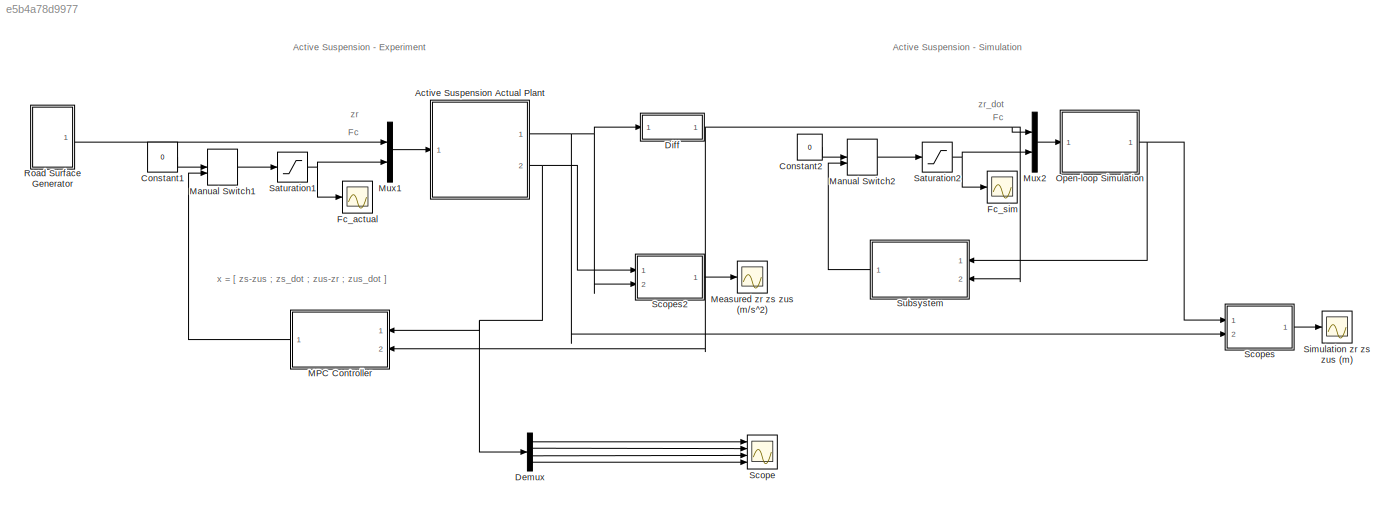
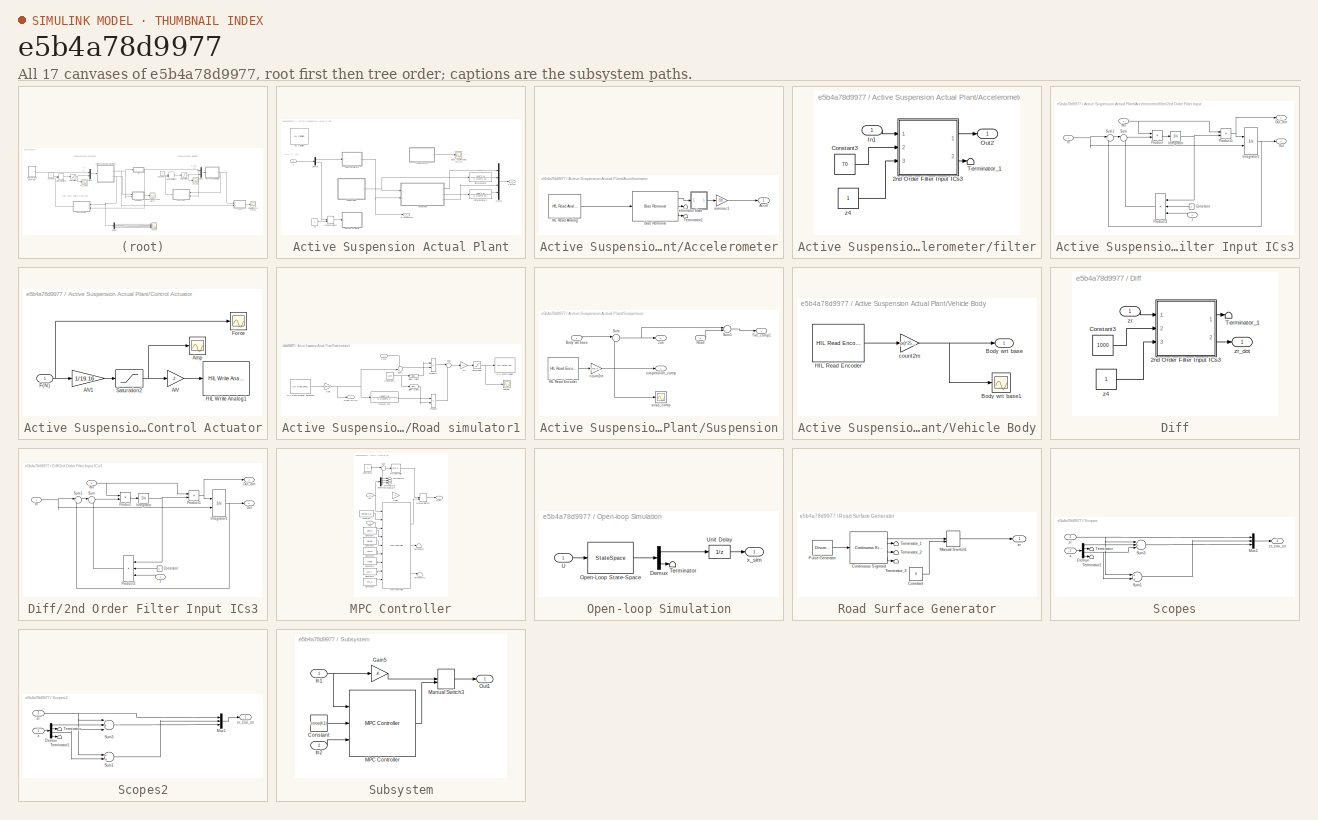
[diagram: thumbnail index - all 17 canvases of the model, root first then tree order]
MODEL slx_e5b4a78d9977
KIND model
CONFIG AbsTol = auto
CONFIG EnableMultiTasking = on
CONFIG FixedStep = 0.001
CONFIG MaxStep = auto
CONFIG MinStep = auto
CONFIG RelTol = 1e-3
CONFIG SampleTimeConstraint = Unconstrained
CONFIG Solver = ode1
CONFIG SolverName = ode1
CONFIG StartTime = 0.0
CONFIG StopTime = inf
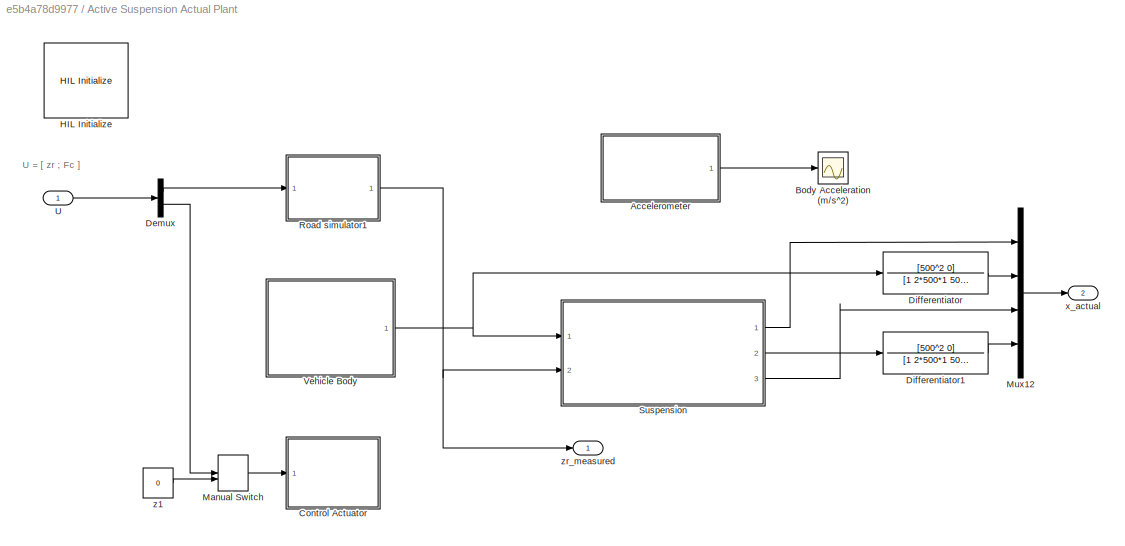
BLOCK [SubSystem] Active Suspension Actual Plant
  Ports = [1, 2]
  RequestExecContextInheritance = off
BLOCK [SubSystem] Active Suspension Actual Plant/Accelerometer
  Ports = [0, 1]
  RequestExecContextInheritance = off
BLOCK [Outport] Active Suspension Actual Plant/Accelerometer/Accel
  IconDisplay = Port number
BLOCK [Reference] Active Suspension Actual Plant/Accelerometer/Bias Removal  REF=quarc_library/Discrete/Bias Removal
  Ports = [1, 3]
  SourceBlock = quarc_library/Discrete/Bias Removal
  SourceProductName = QUARC Targets
  SourceType = Bias Removal
BLOCK [Reference] Active Suspension Actual Plant/Accelerometer/HIL Read Analog  REF=quarc_library/Data Acquisition/Generic/Immediate I//O/HIL Read Analog
  AttributesFormatString = (%<object_name>)
  Ports = [0, 1]
  SourceBlock = quarc_library/Data Acquisition/Generic/Immediate I//O/HIL Read Analog
  SourceProductName = QUARC Targets
  SourceType = HIL Read Analog
  UserDataPersistent = on
BLOCK [Terminator] Active Suspension Actual Plant/Accelerometer/Terminator
BLOCK [Terminator] Active Suspension Actual Plant/Accelerometer/Terminator1
BLOCK [SubSystem] Active Suspension Actual Plant/Accelerometer/filter
  Ports = [1, 1]
  RequestExecContextInheritance = off
BLOCK [SubSystem] Active Suspension Actual Plant/Accelerometer/filter/2nd Order Filter Input ICs3
  Ports = [3, 2]
  RequestExecContextInheritance = off
BLOCK [Constant] Active Suspension Actual Plant/Accelerometer/filter/2nd Order Filter Input ICs3/Constant
  Value = 2
BLOCK [Inport] Active Suspension Actual Plant/Accelerometer/filter/2nd Order Filter Input ICs3/In
  IconDisplay = Port number
BLOCK [Integrator] Active Suspension Actual Plant/Accelerometer/filter/2nd Order Filter Input ICs3/Integrator
  Ports = [1, 1]
BLOCK [Integrator] Active Suspension Actual Plant/Accelerometer/filter/2nd Order Filter Input ICs3/Integrator1
  InitialConditionSource = external
  Ports = [2, 1]
BLOCK [Outport] Active Suspension Actual Plant/Accelerometer/filter/2nd Order Filter Input ICs3/Out
  IconDisplay = Port number
BLOCK [Outport] Active Suspension Actual Plant/Accelerometer/filter/2nd Order Filter Input ICs3/Out_dot
  IconDisplay = Port number
  Port = 2
BLOCK [Product] Active Suspension Actual Plant/Accelerometer/filter/2nd Order Filter Input ICs3/Product
  InputSameDT = off
  OutDataTypeStr = Inherit: Inherit via internal rule
  Ports = [2, 1]
  SaturateOnIntegerOverflow = off
BLOCK [Product] Active Suspension Actual Plant/Accelerometer/filter/2nd Order Filter Input ICs3/Product1
  InputSameDT = off
  OutDataTypeStr = Inherit: Inherit via internal rule
  Ports = [2, 1]
  SaturateOnIntegerOverflow = off
BLOCK [Product] Active Suspension Actual Plant/Accelerometer/filter/2nd Order Filter Input ICs3/Product2
  InputSameDT = off
  Inputs = 3
  OutDataTypeStr = Inherit: Inherit via internal rule
  Ports = [3, 1]
  SaturateOnIntegerOverflow = off
BLOCK [Sum] Active Suspension Actual Plant/Accelerometer/filter/2nd Order Filter Input ICs3/Sum
  IconShape = round
  InputSameDT = off
  Inputs = |+-
  OutDataTypeStr = Inherit: Inherit via internal rule
  Ports = [2, 1]
  SaturateOnIntegerOverflow = off
BLOCK [Sum] Active Suspension Actual Plant/Accelerometer/filter/2nd Order Filter Input ICs3/Sum1
  IconShape = round
  InputSameDT = off
  Inputs = |+-
  OutDataTypeStr = Inherit: Inherit via internal rule
  Ports = [2, 1]
  SaturateOnIntegerOverflow = off
BLOCK [Inport] Active Suspension Actual Plant/Accelerometer/filter/2nd Order Filter Input ICs3/Wn
  IconDisplay = Port number
  Port = 2
BLOCK [Inport] Active Suspension Actual Plant/Accelerometer/filter/2nd Order Filter Input ICs3/z
  IconDisplay = Port number
  Port = 3
BLOCK [Constant] Active Suspension Actual Plant/Accelerometer/filter/Constant3
  Value = 70
BLOCK [Inport] Active Suspension Actual Plant/Accelerometer/filter/In1
  IconDisplay = Port number
BLOCK [Outport] Active Suspension Actual Plant/Accelerometer/filter/Out2
  IconDisplay = Port number
BLOCK [Terminator] Active Suspension Actual Plant/Accelerometer/filter/Terminator_1
BLOCK [Constant] Active Suspension Actual Plant/Accelerometer/filter/z4
BLOCK [Gain] Active Suspension Actual Plant/Accelerometer/mm//sec1
  Gain = -9.8
  OutDataTypeStr = Inherit: Inherit via internal rule
  ParamDataTypeStr = Inherit: Inherit via internal rule
  SaturateOnIntegerOverflow = off
BLOCK [Scope] Active Suspension Actual Plant/Body Acceleration (m//s^2)
  Floating = off
  NumInputPorts = 1
  Ports = [1]
  ScopeSpecificationString = C++SS(StrPVP('Location','[1064, 639, 1557, 1008]'),StrPVP('Open','off'),MxPVP('AxesTitles',53,'struct(''axes1'',''%<SignalLabel>'')'),MxPVP('ScopeGraphics',56,'struct(''FigureColor'',''[0.5 0.5 0.5]'',''AxesColor'',''[0 0 0]'',''AxesTickColor'',''[1 1 1]'',''LineColors'',''[1 1 0;1 0 1;0 1 1;1 0 0;0 1 0;0 0 1]'',''LineStyles'',''-|-|-|-|-|-'',''LineWidths'',''[0.5 0.5 0.5 0.5 0.5 0.5]'',''MarkerSt...<+266ch>
BLOCK [SubSystem] Active Suspension Actual Plant/Control Actuator
  Ports = [1]
  RequestExecContextInheritance = off
BLOCK [Gain] Active Suspension Actual Plant/Control Actuator/A//V
  Gain = -2
  OutDataTypeStr = Inherit: Inherit via internal rule
  ParamDataTypeStr = Inherit: Inherit via internal rule
  SaturateOnIntegerOverflow = off
BLOCK [Gain] Active Suspension Actual Plant/Control Actuator/A//V1
  Gain = 1/19.16
  OutDataTypeStr = Inherit: Inherit via internal rule
  ParamDataTypeStr = Inherit: Inherit via internal rule
  SaturateOnIntegerOverflow = off
BLOCK [Scope] Active Suspension Actual Plant/Control Actuator/Amp
  Floating = off
  NumInputPorts = 1
  Ports = [1]
  ScopeSpecificationString = C++SS(StrPVP('Location','[281, 315, 1275, 510]'),StrPVP('Open','off'),StrPVP('ZoomMode','xonly'),MxPVP('AxesTitles',53,'struct(''axes1'',''%<SignalLabel>'')'),StrPVP('TimeRange','5'),StrPVP('YMin','-1'),StrPVP('YMax','1.25'),StrPVP('SaveName','ScopeData9'),StrPVP('DataFormat','StructureWithTime'),StrPVP('LimitDataPoints','off'),StrPVP('BlockParamSampleTime','0'),StrPVP('Decimation','1'),StrPVP('Bl...<+28ch>
BLOCK [Inport] Active Suspension Actual Plant/Control Actuator/F(N)
  IconDisplay = Port number
BLOCK [Scope] Active Suspension Actual Plant/Control Actuator/Force
  Floating = off
  NumInputPorts = 1
  Ports = [1]
  ScopeSpecificationString = C++SS(StrPVP('Location','[1897, 581, 2891, 776]'),StrPVP('Open','off'),StrPVP('ZoomMode','xonly'),MxPVP('AxesTitles',53,'struct(''axes1'',''%<SignalLabel>'')'),StrPVP('TimeRange','5'),StrPVP('YMin','-15'),StrPVP('YMax','15'),StrPVP('SaveName','ScopeData5'),StrPVP('DataFormat','StructureWithTime'),StrPVP('LimitDataPoints','off'),StrPVP('BlockParamSampleTime','0'),StrPVP('Decimation','1'),StrPVP('Bl...<+28ch>
BLOCK [Reference] Active Suspension Actual Plant/Control Actuator/HIL Write Analog1  REF=quarc_library/Data Acquisition/Generic/Immediate I//O/HIL Write Analog
  AttributesFormatString = (%<object_name>)
  Ports = [1]
  SourceBlock = quarc_library/Data Acquisition/Generic/Immediate I//O/HIL Write Analog
  SourceProductName = QUARC Targets
  SourceType = HIL Write Analog
  UserDataPersistent = on
BLOCK [Saturate] Active Suspension Actual Plant/Control Actuator/Saturation2
  InputPortMap = u0
  LowerLimit = -5
  Ports = [1, 1]
  UpperLimit = 5
BLOCK [Demux] Active Suspension Actual Plant/Demux
  DisplayOption = bar
  Outputs = 2
  Ports = [1, 2]
BLOCK [TransferFcn] Active Suspension Actual Plant/Differentiator
  Denominator = [1 2*500*1 500^2]
  Numerator = [500^2 0]
BLOCK [TransferFcn] Active Suspension Actual Plant/Differentiator1
  Denominator = [1 2*500*1 500^2]
  Numerator = [500^2 0]
BLOCK [Reference] Active Suspension Actual Plant/HIL Initialize  REF=quarc_library/Data Acquisition/Generic/Configuration/HIL Initialize
  AttributesFormatString = %<object_name> (%<board_type>-%<board_number>)
  Ports = []
  Priority = -99
  SourceBlock = quarc_library/Data Acquisition/Generic/Configuration/HIL Initialize
  SourceProductName = QUARC Targets
  SourceType = HIL Initialize
  UserDataPersistent = on
BLOCK [ManualSwitch] Active Suspension Actual Plant/Manual Switch
BLOCK [Mux] Active Suspension Actual Plant/Mux12
  DisplayOption = bar
  Ports = [4, 1]
BLOCK [SubSystem] Active Suspension Actual Plant/Road simulator1
  Ports = [1, 1]
  RequestExecContextInheritance = off
BLOCK [Gain] Active Suspension Actual Plant/Road simulator1/A//V
  Gain = -2
  OutDataTypeStr = Inherit: Inherit via internal rule
  ParamDataTypeStr = Inherit: Inherit via internal rule
  SaturateOnIntegerOverflow = off
BLOCK [Inport] Active Suspension Actual Plant/Road simulator1/Cmd
  IconDisplay = Port number
BLOCK [Constant] Active Suspension Actual Plant/Road simulator1/Constant3
  Value = 1000
BLOCK [Gain] Active Suspension Actual Plant/Road simulator1/Gain
  Gain = -18/(2048*4)/1000
  OutDataTypeStr = Inherit: Inherit via internal rule
  ParamDataTypeStr = Inherit: Inherit via internal rule
  SaturateOnIntegerOverflow = off
BLOCK [Reference] Active Suspension Actual Plant/Road simulator1/HIL Read Encoder Timebase  REF=quarc_library/Data Acquisition/Generic/Timebases/HIL Read Encoder
Timebase
  AttributesFormatString = (%<object_name>)
  Ports = [0, 1]
  SourceBlock = quarc_library/Data Acquisition/Generic/Timebases/HIL Read Encoder\nTimebase
  SourceProductName = QUARC Targets
  SourceType = HIL Read Encoder Timebase
  UserDataPersistent = on
BLOCK [Reference] Active Suspension Actual Plant/Road simulator1/HIL Write Analog  REF=quarc_library/Data Acquisition/Generic/Immediate I//O/HIL Write Analog
  AttributesFormatString = (%<object_name>)
  Ports = [1]
  SourceBlock = quarc_library/Data Acquisition/Generic/Immediate I//O/HIL Write Analog
  SourceProductName = QUARC Targets
  SourceType = HIL Write Analog
  UserDataPersistent = on
BLOCK [Product] Active Suspension Actual Plant/Road simulator1/Product
  InputSameDT = off
  OutDataTypeStr = Inherit: Inherit via internal rule
  Ports = [2, 1]
  SaturateOnIntegerOverflow = off
BLOCK [Product] Active Suspension Actual Plant/Road simulator1/Product1
  InputSameDT = off
  OutDataTypeStr = Inherit: Inherit via internal rule
  Ports = [2, 1]
  SaturateOnIntegerOverflow = off
BLOCK [Outport] Active Suspension Actual Plant/Road simulator1/Road (m1,x1)
  IconDisplay = Port number
BLOCK [Saturate] Active Suspension Actual Plant/Road simulator1/Saturation
  InputPortMap = u0
  LowerLimit = -10
  Ports = [1, 1]
  UpperLimit = 10
BLOCK [Reference] Active Suspension Actual Plant/Road simulator1/Slider Gain3  REF=simulink/Math
Operations/Slider
Gain
  Ports = [1, 1]
  SourceBlock = simulink/Math\nOperations/Slider\nGain
  SourceProductBaseCode = SL
  SourceProductName = Simulink
  SourceType = Slider Gain
BLOCK [Reference] Active Suspension Actual Plant/Road simulator1/Slider Gain4  REF=simulink/Math
Operations/Slider
Gain
  Ports = [1, 1]
  SourceBlock = simulink/Math\nOperations/Slider\nGain
  SourceProductBaseCode = SL
  SourceProductName = Simulink
  SourceType = Slider Gain
BLOCK [Sum] Active Suspension Actual Plant/Road simulator1/Sum
  IconShape = round
  InputSameDT = off
  Inputs = |+-
  OutDataTypeStr = Inherit: Inherit via internal rule
  Ports = [2, 1]
  SaturateOnIntegerOverflow = off
BLOCK [Sum] Active Suspension Actual Plant/Road simulator1/Sum1
  IconShape = round
  InputSameDT = off
  Inputs = +-|
  OutDataTypeStr = Inherit: Inherit via internal rule
  Ports = [2, 1]
  SaturateOnIntegerOverflow = off
BLOCK [TransferFcn] Active Suspension Actual Plant/Road simulator1/Transfer Fcn
  Denominator = [1 2*1000*1 1000^2]
  Numerator = [1000^2 0]
BLOCK [Scope] Active Suspension Actual Plant/Road simulator1/Voltage
  Floating = off
  NumInputPorts = 1
  Ports = [1]
  ScopeSpecificationString = C++SS(StrPVP('Location','[665, 484, 989, 723]'),StrPVP('Open','off'),StrPVP('ZoomMode','yonly'),MxPVP('AxesTitles',53,'struct(''axes1'',''%<SignalLabel>'')'),MxPVP('ScopeGraphics',56,'struct(''FigureColor'',''[0.5 0.5 0.5]'',''AxesColor'',''[0 0 0]'',''AxesTickColor'',''[1 1 1]'',''LineColors'',''[1 1 0;1 0 1;0 1 1;1 0 0;0 1 0;0 0 1]'',''LineStyles'',''-|-|-|-|-|-'',''LineWidths'',''[0.5 0.5 0.5 0...<+339ch>
BLOCK [SubSystem] Active Suspension Actual Plant/Suspension
  Ports = [2, 3]
  RequestExecContextInheritance = off
BLOCK [Inport] Active Suspension Actual Plant/Suspension/Body wrt base 
  IconDisplay = Port number
BLOCK [Reference] Active Suspension Actual Plant/Suspension/HIL Read Encoder  REF=quarc_library/Data Acquisition/Generic/Immediate I//O/HIL Read Encoder
  AttributesFormatString = (%<object_name>)
  Ports = [0, 1]
  SourceBlock = quarc_library/Data Acquisition/Generic/Immediate I//O/HIL Read Encoder
  SourceProductName = QUARC Targets
  SourceType = HIL Read Encoder
  UserDataPersistent = on
BLOCK [Inport] Active Suspension Actual Plant/Suspension/Road
  IconDisplay = Port number
  Port = 2
BLOCK [Sum] Active Suspension Actual Plant/Suspension/Sum
  IconShape = round
  InputSameDT = off
  Inputs = |+-
  OutDataTypeStr = Inherit: Inherit via internal rule
  Ports = [2, 1]
  SaturateOnIntegerOverflow = off
BLOCK [Sum] Active Suspension Actual Plant/Suspension/Sum1
  IconShape = round
  InputSameDT = off
  Inputs = |+-
  OutDataTypeStr = Inherit: Inherit via internal rule
  Ports = [2, 1]
  SaturateOnIntegerOverflow = off
BLOCK [Outport] Active Suspension Actual Plant/Suspension/Tire_comp1
  IconDisplay = Port number
  Port = 3
BLOCK [Gain] Active Suspension Actual Plant/Suspension/count2m
  Gain = 12*pi/4000/1000
  OutDataTypeStr = Inherit: Inherit via internal rule
  ParamDataTypeStr = Inherit: Inherit via internal rule
  SaturateOnIntegerOverflow = off
BLOCK [Scope] Active Suspension Actual Plant/Suspension/susp_comp
  Floating = off
  NumInputPorts = 1
  Ports = [1]
  ScopeSpecificationString = C++SS(StrPVP('Location','[5, 34, 1449, 885]'),StrPVP('Open','off'),MxPVP('AxesTitles',53,'struct(''axes1'',''%<SignalLabel>'')'),StrPVP('YMin','-0.02'),StrPVP('YMax','0.0125'),StrPVP('SaveName','ScopeData11'),StrPVP('DataFormat','StructureWithTime'),StrPVP('BlockParamSampleTime','0'),StrPVP('LimitDataPoints','on'),StrPVP('Decimation','1'),StrPVP('BlockParamSampleInput','off'))
BLOCK [Outport] Active Suspension Actual Plant/Suspension/suspension_comp
  IconDisplay = Port number
BLOCK [Outport] Active Suspension Actual Plant/Suspension/zus
  IconDisplay = Port number
  Port = 2
BLOCK [Inport] Active Suspension Actual Plant/U
  IconDisplay = Port number
BLOCK [SubSystem] Active Suspension Actual Plant/Vehicle Body
  Ports = [0, 1]
  RequestExecContextInheritance = off
BLOCK [Outport] Active Suspension Actual Plant/Vehicle Body/Body wrt base
  IconDisplay = Port number
BLOCK [Scope] Active Suspension Actual Plant/Vehicle Body/Body wrt base1
  Floating = off
  NumInputPorts = 1
  Ports = [1]
  ScopeSpecificationString = C++SS(StrPVP('Location','[5, 34, 1449, 885]'),StrPVP('Open','off'),MxPVP('AxesTitles',53,'struct(''axes1'',''%<SignalLabel>'')'),StrPVP('YMin','-0.006'),StrPVP('YMax','0.017'),StrPVP('SaveName','ScopeData8'),StrPVP('DataFormat','StructureWithTime'),StrPVP('BlockParamSampleTime','0'),StrPVP('LimitDataPoints','on'),StrPVP('Decimation','1'),StrPVP('BlockParamSampleInput','off'))
BLOCK [Reference] Active Suspension Actual Plant/Vehicle Body/HIL Read Encoder  REF=quarc_library/Data Acquisition/Generic/Immediate I//O/HIL Read Encoder
  AttributesFormatString = (%<object_name>)
  Ports = [0, 1]
  SourceBlock = quarc_library/Data Acquisition/Generic/Immediate I//O/HIL Read Encoder
  SourceProductName = QUARC Targets
  SourceType = HIL Read Encoder
  UserDataPersistent = on
BLOCK [Gain] Active Suspension Actual Plant/Vehicle Body/count2m
  Gain = pi()*25.4/4/4096/1000
  OutDataTypeStr = Inherit: Inherit via internal rule
  ParamDataTypeStr = Inherit: Inherit via internal rule
  SaturateOnIntegerOverflow = off
BLOCK [Outport] Active Suspension Actual Plant/x_actual
  IconDisplay = Port number
  Port = 2
BLOCK [Constant] Active Suspension Actual Plant/z1
  Value = 0
BLOCK [Outport] Active Suspension Actual Plant/zr_measured
  IconDisplay = Port number
BLOCK [Constant] Constant1
  Value = 0
BLOCK [Constant] Constant2
  Value = 0
BLOCK [Demux] Demux
  DisplayOption = bar
  Ports = [1, 4]
BLOCK [SubSystem] Diff
  Ports = [1, 1]
  RequestExecContextInheritance = off
BLOCK [SubSystem] Diff/2nd Order Filter Input ICs3
  Ports = [3, 2]
  RequestExecContextInheritance = off
BLOCK [Constant] Diff/2nd Order Filter Input ICs3/Constant
  Value = 2
BLOCK [Inport] Diff/2nd Order Filter Input ICs3/In
  IconDisplay = Port number
BLOCK [Integrator] Diff/2nd Order Filter Input ICs3/Integrator
  Ports = [1, 1]
BLOCK [Integrator] Diff/2nd Order Filter Input ICs3/Integrator1
  InitialConditionSource = external
  Ports = [2, 1]
BLOCK [Outport] Diff/2nd Order Filter Input ICs3/Out
  IconDisplay = Port number
BLOCK [Outport] Diff/2nd Order Filter Input ICs3/Out_dot
  IconDisplay = Port number
  Port = 2
BLOCK [Product] Diff/2nd Order Filter Input ICs3/Product
  InputSameDT = off
  OutDataTypeStr = Inherit: Inherit via internal rule
  Ports = [2, 1]
  SaturateOnIntegerOverflow = off
BLOCK [Product] Diff/2nd Order Filter Input ICs3/Product1
  InputSameDT = off
  OutDataTypeStr = Inherit: Inherit via internal rule
  Ports = [2, 1]
  SaturateOnIntegerOverflow = off
BLOCK [Product] Diff/2nd Order Filter Input ICs3/Product2
  InputSameDT = off
  Inputs = 3
  OutDataTypeStr = Inherit: Inherit via internal rule
  Ports = [3, 1]
  SaturateOnIntegerOverflow = off
BLOCK [Sum] Diff/2nd Order Filter Input ICs3/Sum
  IconShape = round
  InputSameDT = off
  Inputs = |+-
  OutDataTypeStr = Inherit: Inherit via internal rule
  Ports = [2, 1]
  SaturateOnIntegerOverflow = off
BLOCK [Sum] Diff/2nd Order Filter Input ICs3/Sum1
  IconShape = round
  InputSameDT = off
  Inputs = |+-
  OutDataTypeStr = Inherit: Inherit via internal rule
  Ports = [2, 1]
  SaturateOnIntegerOverflow = off
BLOCK [Inport] Diff/2nd Order Filter Input ICs3/Wn
  IconDisplay = Port number
  Port = 2
BLOCK [Inport] Diff/2nd Order Filter Input ICs3/z
  IconDisplay = Port number
  Port = 3
BLOCK [Constant] Diff/Constant3
  Value = 1000
BLOCK [Terminator] Diff/Terminator_1
BLOCK [Constant] Diff/z4
BLOCK [Inport] Diff/zr
  IconDisplay = Port number
BLOCK [Outport] Diff/zr_dot
  IconDisplay = Port number
BLOCK [Scope] Fc_actual
  Floating = off
  NumInputPorts = 1
  Ports = [1]
  ScopeSpecificationString = Simulink.scopes.TimeScopeBlockCfg('CurrentConfiguration', extmgr.ConfigurationSet(extmgr.Configuration('Core','General UI',true),extmgr.Configuration('Core','Source UI',true),extmgr.Configuration('Sources','WiredSimulink',true,'DataLoggingVariableName','ScopeData2','DataLoggingSaveFormat','StructureWithTime','DataLoggingLimitDataPoints',true,'DataLoggingDecimation','1','DataLoggingDecimateData',tr...<+1727ch>
BLOCK [Scope] Fc_sim
  Floating = off
  NumInputPorts = 1
  Ports = [1]
  ScopeSpecificationString = Simulink.scopes.TimeScopeBlockCfg('CurrentConfiguration', extmgr.ConfigurationSet(extmgr.Configuration('Core','General UI',true),extmgr.Configuration('Core','Source UI',true),extmgr.Configuration('Sources','WiredSimulink',true,'DataLoggingVariableName','ScopeData10','DataLoggingSaveFormat','StructureWithTime','DataLoggingLimitDataPoints',true,'DataLoggingDecimation','1','DataLoggingDecimateData',t...<+1713ch>
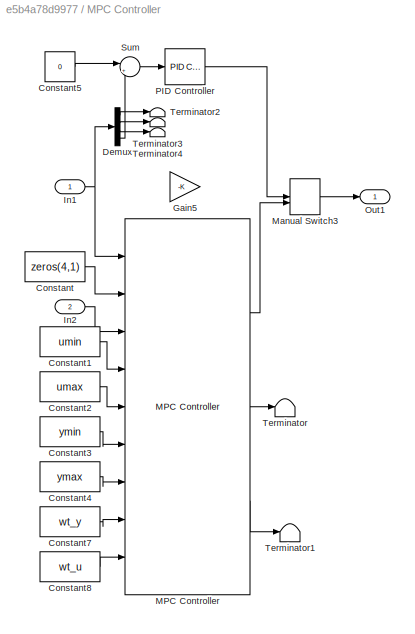
BLOCK [SubSystem] MPC Controller
  Ports = [2, 1]
  RequestExecContextInheritance = off
  VariantControl = Variant1
BLOCK [Constant] MPC Controller/Constant
  Value = zeros(4,1)
BLOCK [Constant] MPC Controller/Constant1
  Value = umin
BLOCK [Constant] MPC Controller/Constant2
  Value = umax
BLOCK [Constant] MPC Controller/Constant3
  Value = ymin
BLOCK [Constant] MPC Controller/Constant4
  Value = ymax
BLOCK [Constant] MPC Controller/Constant5
  Value = 0
BLOCK [Constant] MPC Controller/Constant7
  Value = wt_y
BLOCK [Constant] MPC Controller/Constant8
  Value = wt_u
BLOCK [Demux] MPC Controller/Demux
  DisplayOption = bar
  Ports = [1, 4]
BLOCK [Gain] MPC Controller/Gain5
  Commented = on
  Gain = -K
  Multiplication = Matrix(K*u)
  OutDataTypeStr = Inherit: Inherit via internal rule
  ParamDataTypeStr = Inherit: Inherit via internal rule
  SaturateOnIntegerOverflow = off
BLOCK [Inport] MPC Controller/In1
  IconDisplay = Port number
BLOCK [Inport] MPC Controller/In2
  IconDisplay = Port number
  Port = 2
BLOCK [Reference] MPC Controller/MPC Controller  REF=mpclib/MPC Controller  (lib defined in mdl_ae329e0e0455)
  Ports = [9, 3]
  SCDEnableBlockLinearizationSpecification = on
  SourceBlock = mpclib/MPC Controller
  SourceProductBaseCode = Missing
  SourceProductName = MATLAB Runtime - Model Predictive Control Toolbox Addin
  SourceType = MPC
BLOCK [ManualSwitch] MPC Controller/Manual Switch3
BLOCK [Outport] MPC Controller/Out1
  IconDisplay = Port number
BLOCK [Reference] MPC Controller/PID Controller  REF=simulink/Continuous/PID Controller
  Ports = [1, 1]
  SourceBlock = simulink/Continuous/PID Controller
  SourceProductBaseCode = SL
  SourceProductName = Simulink
  SourceType = PID 1dof
BLOCK [Sum] MPC Controller/Sum
  IconShape = round
  InputSameDT = off
  Inputs = |+-
  OutDataTypeStr = Inherit: Inherit via internal rule
  Ports = [2, 1]
  SaturateOnIntegerOverflow = off
BLOCK [Terminator] MPC Controller/Terminator
BLOCK [Terminator] MPC Controller/Terminator1
BLOCK [Terminator] MPC Controller/Terminator2
BLOCK [Terminator] MPC Controller/Terminator3
BLOCK [Terminator] MPC Controller/Terminator4
BLOCK [ManualSwitch] Manual Switch1
  CurrentSetting = 0
BLOCK [ManualSwitch] Manual Switch2
  CurrentSetting = 0
BLOCK [Scope] Measured zr zs zus (m//s^2)
  Floating = off
  NumInputPorts = 1
  Ports = [1]
  ScopeSpecificationString = Simulink.scopes.TimeScopeBlockCfg('CurrentConfiguration', extmgr.ConfigurationSet(extmgr.Configuration('Core','General UI',true),extmgr.Configuration('Core','Source UI',true),extmgr.Configuration('Sources','WiredSimulink',true,'DataLoggingVariableName','ScopeData6','DataLoggingSaveFormat','StructureWithTime','DataLoggingMaxPoints','300000','DataLoggingLimitDataPoints',true,'DataLoggingDecimation',...<+1715ch>
BLOCK [Mux] Mux1
  DisplayOption = bar
  Inputs = 2
  Ports = [2, 1]
BLOCK [Mux] Mux2
  DisplayOption = bar
  Inputs = 2
  Ports = [2, 1]
BLOCK [SubSystem] Open-loop Simulation
  Ports = [1, 1]
  RequestExecContextInheritance = off
BLOCK [Demux] Open-loop Simulation/Demux
  DisplayOption = bar
  Outputs = [4 2]
  Ports = [1, 2]
BLOCK [StateSpace] Open-loop Simulation/Open-Loop State-Space
  A = A
  B = B
  C = cat(1,eye(4), C)
  D = cat(1,zeros(4,2),D)
  InitialCondition = 0
  Ports = [1, 1]
BLOCK [Terminator] Open-loop Simulation/Terminator
BLOCK [Inport] Open-loop Simulation/U
  IconDisplay = Port number
BLOCK [UnitDelay] Open-loop Simulation/Unit Delay
  HasFrameUpgradeWarning = on
  SampleTime = -1
BLOCK [Outport] Open-loop Simulation/x_sim
  IconDisplay = Port number
BLOCK [SubSystem] Road Surface Generator
  Ports = [0, 1]
  RequestExecContextInheritance = off
BLOCK [Constant] Road Surface Generator/Constant
  Value = 0
BLOCK [Reference] Road Surface Generator/Continuous Sigmoid  REF=quarc_library/Sources/Sigmoids/Continuous Sigmoid
  Ports = [1, 4]
  SourceBlock = quarc_library/Sources/Sigmoids/Continuous Sigmoid
  SourceProductName = QUARC Targets
  SourceType = Continuous Sigmoid
BLOCK [ManualSwitch] Road Surface Generator/Manual Switch1
BLOCK [DiscretePulseGenerator] Road Surface Generator/Pulse Generator
  Amplitude = 0.02
  Period = 3
  PhaseDelay = .1
  Ports = [0, 1]
  PulseType = Time based
  PulseWidth = 50
BLOCK [Terminator] Road Surface Generator/Terminator_1
BLOCK [Terminator] Road Surface Generator/Terminator_2
BLOCK [Terminator] Road Surface Generator/Terminator_3
BLOCK [Outport] Road Surface Generator/zr
  IconDisplay = Port number
BLOCK [Saturate] Saturation1
  InputPortMap = u0
  LowerLimit = -38.3
  Ports = [1, 1]
  UpperLimit = 38.3
BLOCK [Saturate] Saturation2
  InputPortMap = u0
  LowerLimit = -39.2
  Ports = [1, 1]
  UpperLimit = 39.2
BLOCK [Scope] Scope
  Floating = off
  NumInputPorts = 4
  Ports = [4]
  ScopeSpecificationString = Simulink.scopes.TimeScopeBlockCfg('CurrentConfiguration', extmgr.ConfigurationSet(extmgr.Configuration('Core','General UI',true),extmgr.Configuration('Core','Source UI',true),extmgr.Configuration('Sources','WiredSimulink',true,'DataLoggingVariableName','ScopeData1'),extmgr.Configuration('Visuals','Time Domain',true,'SerializedDisplays',{struct('MinYLimReal','-0.01517','MaxYLimReal','0.01507','YLab...<+3425ch>
BLOCK [SubSystem] Scopes
  Ports = [2, 1]
  RequestExecContextInheritance = off
BLOCK [Demux] Scopes/Demux
  DisplayOption = bar
  Ports = [1, 4]
BLOCK [Mux] Scopes/Mux1
  DisplayOption = bar
  Inputs = 3
  Ports = [3, 1]
BLOCK [Sum] Scopes/Sum1
  Inputs = 2
  Ports = [2, 1]
BLOCK [Sum] Scopes/Sum3
  Inputs = 3
  Ports = [3, 1]
BLOCK [Terminator] Scopes/Terminator
BLOCK [Terminator] Scopes/Terminator1
BLOCK [Inport] Scopes/x
  IconDisplay = Port number
BLOCK [Inport] Scopes/zr
  IconDisplay = Port number
  Port = 2
BLOCK [Outport] Scopes/zr_zus_zs
  IconDisplay = Port number
BLOCK [SubSystem] Scopes2
  Ports = [2, 1]
  RequestExecContextInheritance = off
BLOCK [Demux] Scopes2/Demux
  DisplayOption = bar
  Ports = [1, 4]
BLOCK [Mux] Scopes2/Mux1
  DisplayOption = bar
  Inputs = 3
  Ports = [3, 1]
BLOCK [Sum] Scopes2/Sum1
  Inputs = 2
  Ports = [2, 1]
BLOCK [Sum] Scopes2/Sum3
  Inputs = 3
  Ports = [3, 1]
BLOCK [Terminator] Scopes2/Terminator
BLOCK [Terminator] Scopes2/Terminator1
BLOCK [Inport] Scopes2/x
  IconDisplay = Port number
BLOCK [Inport] Scopes2/zr
  IconDisplay = Port number
  Port = 2
BLOCK [Outport] Scopes2/zr_zus_zs
  IconDisplay = Port number
BLOCK [Scope] Simulation zr zs zus (m)
  Floating = off
  NumInputPorts = 1
  Ports = [1]
  ScopeSpecificationString = Simulink.scopes.TimeScopeBlockCfg('CurrentConfiguration', extmgr.ConfigurationSet(extmgr.Configuration('Core','General UI',true),extmgr.Configuration('Core','Source UI',true),extmgr.Configuration('Sources','WiredSimulink',true,'DataLoggingVariableName','ScopeData17','DataLoggingSaveFormat','StructureWithTime','DataLoggingMaxPoints','300000','DataLoggingLimitDataPoints',true,'DataLoggingDecimation'...<+1719ch>
BLOCK [SubSystem] Subsystem
  Ports = [2, 1]
  RequestExecContextInheritance = off
  VariantControl = Variant1
BLOCK [Constant] Subsystem/Constant
  Value = zeros(4,1)
BLOCK [Gain] Subsystem/Gain5
  Gain = -K
  Multiplication = Matrix(K*u)
  OutDataTypeStr = Inherit: Inherit via internal rule
  ParamDataTypeStr = Inherit: Inherit via internal rule
  SaturateOnIntegerOverflow = off
BLOCK [Inport] Subsystem/In1
  IconDisplay = Port number
BLOCK [Inport] Subsystem/In2
  IconDisplay = Port number
  Port = 2
BLOCK [Reference] Subsystem/MPC Controller  REF=mpclib/MPC Controller  (lib defined in mdl_ae329e0e0455)
  Ports = [3, 1]
  SCDEnableBlockLinearizationSpecification = on
  SourceBlock = mpclib/MPC Controller
  SourceProductBaseCode = Missing
  SourceProductName = MATLAB Runtime - Model Predictive Control Toolbox Addin
  SourceType = MPC
BLOCK [ManualSwitch] Subsystem/Manual Switch3
  CurrentSetting = 0
BLOCK [Outport] Subsystem/Out1
  IconDisplay = Port number
ANNOTATION (root): Active Suspension - Experiment
ANNOTATION (root): Active Suspension - Simulation
ANNOTATION (root): Fc
ANNOTATION (root): x = [ zs-zus ; zs_dot ; zus-zr ; zus_dot ]
ANNOTATION (root): zr
ANNOTATION (root): zr_dot
ANNOTATION Active Suspension Actual Plant: U = [ zr ; Fc ]
LINE Active Suspension Actual Plant/Accelerometer/Bias Removal:1 -> Active Suspension Actual Plant/Accelerometer/filter:1
LINE Active Suspension Actual Plant/Accelerometer/Bias Removal:2 -> Active Suspension Actual Plant/Accelerometer/Terminator:1
LINE Active Suspension Actual Plant/Accelerometer/Bias Removal:3 -> Active Suspension Actual Plant/Accelerometer/Terminator1:1
LINE Active Suspension Actual Plant/Accelerometer/HIL Read Analog:1 -> Active Suspension Actual Plant/Accelerometer/Bias Removal:1
LINE Active Suspension Actual Plant/Accelerometer/filter/2nd Order Filter Input ICs3/Constant:1 -> Active Suspension Actual Plant/Accelerometer/filter/2nd Order Filter Input ICs3/Product2:2
NET Active Suspension Actual Plant/Accelerometer/filter/2nd Order Filter Input ICs3/In:1 -> Active Suspension Actual Plant/Accelerometer/filter/2nd Order Filter Input ICs3/Integrator1:2, Active Suspension Actual Plant/Accelerometer/filter/2nd Order Filter Input ICs3/Sum1:1
NET Active Suspension Actual Plant/Accelerometer/filter/2nd Order Filter Input ICs3/Integrator1:1 -> Active Suspension Actual Plant/Accelerometer/filter/2nd Order Filter Input ICs3/Out:1, Active Suspension Actual Plant/Accelerometer/filter/2nd Order Filter Input ICs3/Sum1:2
NET Active Suspension Actual Plant/Accelerometer/filter/2nd Order Filter Input ICs3/Integrator:1 -> Active Suspension Actual Plant/Accelerometer/filter/2nd Order Filter Input ICs3/Product1:2, Active Suspension Actual Plant/Accelerometer/filter/2nd Order Filter Input ICs3/Product2:1
NET Active Suspension Actual Plant/Accelerometer/filter/2nd Order Filter Input ICs3/Product1:1 -> Active Suspension Actual Plant/Accelerometer/filter/2nd Order Filter Input ICs3/Integrator1:1, Active Suspension Actual Plant/Accelerometer/filter/2nd Order Filter Input ICs3/Out_dot:1
LINE Active Suspension Actual Plant/Accelerometer/filter/2nd Order Filter Input ICs3/Product2:1 -> Active Suspension Actual Plant/Accelerometer/filter/2nd Order Filter Input ICs3/Sum:2
LINE Active Suspension Actual Plant/Accelerometer/filter/2nd Order Filter Input ICs3/Product:1 -> Active Suspension Actual Plant/Accelerometer/filter/2nd Order Filter Input ICs3/Integrator:1
LINE Active Suspension Actual Plant/Accelerometer/filter/2nd Order Filter Input ICs3/Sum1:1 -> Active Suspension Actual Plant/Accelerometer/filter/2nd Order Filter Input ICs3/Sum:1
LINE Active Suspension Actual Plant/Accelerometer/filter/2nd Order Filter Input ICs3/Sum:1 -> Active Suspension Actual Plant/Accelerometer/filter/2nd Order Filter Input ICs3/Product:2
NET Active Suspension Actual Plant/Accelerometer/filter/2nd Order Filter Input ICs3/Wn:1 -> Active Suspension Actual Plant/Accelerometer/filter/2nd Order Filter Input ICs3/Product1:1, Active Suspension Actual Plant/Accelerometer/filter/2nd Order Filter Input ICs3/Product:1
LINE Active Suspension Actual Plant/Accelerometer/filter/2nd Order Filter Input ICs3/z:1 -> Active Suspension Actual Plant/Accelerometer/filter/2nd Order Filter Input ICs3/Product2:3
LINE Active Suspension Actual Plant/Accelerometer/filter/2nd Order Filter Input ICs3:1 -> Active Suspension Actual Plant/Accelerometer/filter/Out2:1
LINE Active Suspension Actual Plant/Accelerometer/filter/2nd Order Filter Input ICs3:2 -> Active Suspension Actual Plant/Accelerometer/filter/Terminator_1:1
LINE Active Suspension Actual Plant/Accelerometer/filter/Constant3:1 -> Active Suspension Actual Plant/Accelerometer/filter/2nd Order Filter Input ICs3:2
LINE Active Suspension Actual Plant/Accelerometer/filter/In1:1 -> Active Suspension Actual Plant/Accelerometer/filter/2nd Order Filter Input ICs3:1
LINE Active Suspension Actual Plant/Accelerometer/filter/z4:1 -> Active Suspension Actual Plant/Accelerometer/filter/2nd Order Filter Input ICs3:3
LINE Active Suspension Actual Plant/Accelerometer/filter:1 -> Active Suspension Actual Plant/Accelerometer/mm//sec1:1
LINE Active Suspension Actual Plant/Accelerometer/mm//sec1:1 -> Active Suspension Actual Plant/Accelerometer/Accel:1
LINE Active Suspension Actual Plant/Accelerometer:1 -> Active Suspension Actual Plant/Body Acceleration (m//s^2):1
LINE Active Suspension Actual Plant/Control Actuator/A//V1:1 -> Active Suspension Actual Plant/Control Actuator/Saturation2:1
LINE Active Suspension Actual Plant/Control Actuator/A//V:1 -> Active Suspension Actual Plant/Control Actuator/HIL Write Analog1:1
NET Active Suspension Actual Plant/Control Actuator/F(N):1 -> Active Suspension Actual Plant/Control Actuator/A//V1:1, Active Suspension Actual Plant/Control Actuator/Force:1
NET Active Suspension Actual Plant/Control Actuator/Saturation2:1 -> Active Suspension Actual Plant/Control Actuator/A//V:1, Active Suspension Actual Plant/Control Actuator/Amp:1
LINE Active Suspension Actual Plant/Demux:1 -> Active Suspension Actual Plant/Road simulator1:1
LINE Active Suspension Actual Plant/Demux:2 -> Active Suspension Actual Plant/Manual Switch:1
LINE Active Suspension Actual Plant/Differentiator1:1 -> Active Suspension Actual Plant/Mux12:4
LINE Active Suspension Actual Plant/Differentiator:1 -> Active Suspension Actual Plant/Mux12:2
LINE Active Suspension Actual Plant/Manual Switch:1 -> Active Suspension Actual Plant/Control Actuator:1
LINE Active Suspension Actual Plant/Mux12:1 -> Active Suspension Actual Plant/x_actual:1
LINE Active Suspension Actual Plant/Road simulator1/A//V:1 -> Active Suspension Actual Plant/Road simulator1/Saturation:1
LINE Active Suspension Actual Plant/Road simulator1/Cmd:1 -> Active Suspension Actual Plant/Road simulator1/Sum1:1
NET Active Suspension Actual Plant/Road simulator1/Constant3:1 -> Active Suspension Actual Plant/Road simulator1/Slider Gain3:1, Active Suspension Actual Plant/Road simulator1/Slider Gain4:1
NET Active Suspension Actual Plant/Road simulator1/Gain:1 -> Active Suspension Actual Plant/Road simulator1/Road (m1,x1):1, Active Suspension Actual Plant/Road simulator1/Sum1:2, Active Suspension Actual Plant/Road simulator1/Transfer Fcn:1
LINE Active Suspension Actual Plant/Road simulator1/HIL Read Encoder Timebase:1 -> Active Suspension Actual Plant/Road simulator1/Gain:1
LINE Active Suspension Actual Plant/Road simulator1/Product1:1 -> Active Suspension Actual Plant/Road simulator1/Sum:1
LINE Active Suspension Actual Plant/Road simulator1/Product:1 -> Active Suspension Actual Plant/Road simulator1/Sum:2
NET Active Suspension Actual Plant/Road simulator1/Saturation:1 -> Active Suspension Actual Plant/Road simulator1/HIL Write Analog:1, Active Suspension Actual Plant/Road simulator1/Voltage:1
LINE Active Suspension Actual Plant/Road simulator1/Slider Gain3:1 -> Active Suspension Actual Plant/Road simulator1/Product1:1
LINE Active Suspension Actual Plant/Road simulator1/Slider Gain4:1 -> Active Suspension Actual Plant/Road simulator1/Product:2
LINE Active Suspension Actual Plant/Road simulator1/Sum1:1 -> Active Suspension Actual Plant/Road simulator1/Product1:2
LINE Active Suspension Actual Plant/Road simulator1/Sum:1 -> Active Suspension Actual Plant/Road simulator1/A//V:1
LINE Active Suspension Actual Plant/Road simulator1/Transfer Fcn:1 -> Active Suspension Actual Plant/Road simulator1/Product:1
NET Active Suspension Actual Plant/Road simulator1:1 -> Active Suspension Actual Plant/Suspension:2, Active Suspension Actual Plant/zr_measured:1
LINE Active Suspension Actual Plant/Suspension/Body wrt base :1 -> Active Suspension Actual Plant/Suspension/Sum:1
LINE Active Suspension Actual Plant/Suspension/HIL Read Encoder:1 -> Active Suspension Actual Plant/Suspension/count2m:1
LINE Active Suspension Actual Plant/Suspension/Road:1 -> Active Suspension Actual Plant/Suspension/Sum1:2
LINE Active Suspension Actual Plant/Suspension/Sum1:1 -> Active Suspension Actual Plant/Suspension/Tire_comp1:1
NET Active Suspension Actual Plant/Suspension/Sum:1 -> Active Suspension Actual Plant/Suspension/Sum1:1, Active Suspension Actual Plant/Suspension/zus:1
NET Active Suspension Actual Plant/Suspension/count2m:1 -> Active Suspension Actual Plant/Suspension/Sum:2, Active Suspension Actual Plant/Suspension/susp_comp:1, Active Suspension Actual Plant/Suspension/suspension_comp:1
LINE Active Suspension Actual Plant/Suspension:1 -> Active Suspension Actual Plant/Mux12:1
LINE Active Suspension Actual Plant/Suspension:2 -> Active Suspension Actual Plant/Differentiator1:1
LINE Active Suspension Actual Plant/Suspension:3 -> Active Suspension Actual Plant/Mux12:3
LINE Active Suspension Actual Plant/U:1 -> Active Suspension Actual Plant/Demux:1
LINE Active Suspension Actual Plant/Vehicle Body/HIL Read Encoder:1 -> Active Suspension Actual Plant/Vehicle Body/count2m:1
NET Active Suspension Actual Plant/Vehicle Body/count2m:1 -> Active Suspension Actual Plant/Vehicle Body/Body wrt base1:1, Active Suspension Actual Plant/Vehicle Body/Body wrt base:1
NET Active Suspension Actual Plant/Vehicle Body:1 -> Active Suspension Actual Plant/Differentiator:1, Active Suspension Actual Plant/Suspension:1
LINE Active Suspension Actual Plant/z1:1 -> Active Suspension Actual Plant/Manual Switch:2
NET Active Suspension Actual Plant:1 -> Diff:1, Scopes2:2, Scopes:2
NET Active Suspension Actual Plant:2 -> Demux:1, MPC Controller:1, Scopes2:1
LINE Constant1:1 -> Manual Switch1:1
LINE Constant2:1 -> Manual Switch2:1
LINE Demux:1 -> Scope:1
LINE Demux:2 -> Scope:2
LINE Demux:3 -> Scope:3
LINE Demux:4 -> Scope:4
LINE Diff/2nd Order Filter Input ICs3/Constant:1 -> Diff/2nd Order Filter Input ICs3/Product2:2
NET Diff/2nd Order Filter Input ICs3/In:1 -> Diff/2nd Order Filter Input ICs3/Integrator1:2, Diff/2nd Order Filter Input ICs3/Sum1:1
NET Diff/2nd Order Filter Input ICs3/Integrator1:1 -> Diff/2nd Order Filter Input ICs3/Out:1, Diff/2nd Order Filter Input ICs3/Sum1:2
NET Diff/2nd Order Filter Input ICs3/Integrator:1 -> Diff/2nd Order Filter Input ICs3/Product1:2, Diff/2nd Order Filter Input ICs3/Product2:1
NET Diff/2nd Order Filter Input ICs3/Product1:1 -> Diff/2nd Order Filter Input ICs3/Integrator1:1, Diff/2nd Order Filter Input ICs3/Out_dot:1
LINE Diff/2nd Order Filter Input ICs3/Product2:1 -> Diff/2nd Order Filter Input ICs3/Sum:2
LINE Diff/2nd Order Filter Input ICs3/Product:1 -> Diff/2nd Order Filter Input ICs3/Integrator:1
LINE Diff/2nd Order Filter Input ICs3/Sum1:1 -> Diff/2nd Order Filter Input ICs3/Sum:1
LINE Diff/2nd Order Filter Input ICs3/Sum:1 -> Diff/2nd Order Filter Input ICs3/Product:2
NET Diff/2nd Order Filter Input ICs3/Wn:1 -> Diff/2nd Order Filter Input ICs3/Product1:1, Diff/2nd Order Filter Input ICs3/Product:1
LINE Diff/2nd Order Filter Input ICs3/z:1 -> Diff/2nd Order Filter Input ICs3/Product2:3
LINE Diff/2nd Order Filter Input ICs3:1 -> Diff/Terminator_1:1
LINE Diff/2nd Order Filter Input ICs3:2 -> Diff/zr_dot:1
LINE Diff/Constant3:1 -> Diff/2nd Order Filter Input ICs3:2
LINE Diff/z4:1 -> Diff/2nd Order Filter Input ICs3:3
LINE Diff/zr:1 -> Diff/2nd Order Filter Input ICs3:1
NET Diff:1 -> MPC Controller:2, Mux2:1, Subsystem:2
LINE MPC Controller/Constant1:1 -> MPC Controller/MPC Controller:4
LINE MPC Controller/Constant2:1 -> MPC Controller/MPC Controller:5
LINE MPC Controller/Constant3:1 -> MPC Controller/MPC Controller:6
LINE MPC Controller/Constant4:1 -> MPC Controller/MPC Controller:7
LINE MPC Controller/Constant5:1 -> MPC Controller/Sum:1
LINE MPC Controller/Constant7:1 -> MPC Controller/MPC Controller:8
LINE MPC Controller/Constant8:1 -> MPC Controller/MPC Controller:9
LINE MPC Controller/Constant:1 -> MPC Controller/MPC Controller:2
LINE MPC Controller/Demux:1 -> MPC Controller/Terminator2:1
LINE MPC Controller/Demux:2 -> MPC Controller/Terminator3:1
LINE MPC Controller/Demux:3 -> MPC Controller/Terminator4:1
LINE MPC Controller/Demux:4 -> MPC Controller/Sum:2
NET MPC Controller/In1:1 -> MPC Controller/Demux:1, MPC Controller/MPC Controller:1
LINE MPC Controller/In2:1 -> MPC Controller/MPC Controller:3
LINE MPC Controller/MPC Controller:1 -> MPC Controller/Manual Switch3:2
LINE MPC Controller/MPC Controller:2 -> MPC Controller/Terminator:1
LINE MPC Controller/MPC Controller:3 -> MPC Controller/Terminator1:1
LINE MPC Controller/Manual Switch3:1 -> MPC Controller/Out1:1
LINE MPC Controller/PID Controller:1 -> MPC Controller/Manual Switch3:1
LINE MPC Controller/Sum:1 -> MPC Controller/PID Controller:1
LINE MPC Controller:1 -> Manual Switch1:2
LINE Manual Switch1:1 -> Saturation1:1
LINE Manual Switch2:1 -> Saturation2:1
LINE Mux1:1 -> Active Suspension Actual Plant:1
LINE Mux2:1 -> Open-loop Simulation:1
LINE Open-loop Simulation/Demux:1 -> Open-loop Simulation/Unit Delay:1
LINE Open-loop Simulation/Demux:2 -> Open-loop Simulation/Terminator:1
LINE Open-loop Simulation/Open-Loop State-Space:1 -> Open-loop Simulation/Demux:1
LINE Open-loop Simulation/U:1 -> Open-loop Simulation/Open-Loop State-Space:1
LINE Open-loop Simulation/Unit Delay:1 -> Open-loop Simulation/x_sim:1
NET Open-loop Simulation:1 -> Scopes:1, Subsystem:1
LINE Road Surface Generator/Constant:1 -> Road Surface Generator/Manual Switch1:2
LINE Road Surface Generator/Continuous Sigmoid:1 -> Road Surface Generator/Manual Switch1:1
LINE Road Surface Generator/Continuous Sigmoid:2 -> Road Surface Generator/Terminator_1:1
LINE Road Surface Generator/Continuous Sigmoid:3 -> Road Surface Generator/Terminator_2:1
LINE Road Surface Generator/Continuous Sigmoid:4 -> Road Surface Generator/Terminator_3:1
LINE Road Surface Generator/Manual Switch1:1 -> Road Surface Generator/zr:1
LINE Road Surface Generator/Pulse Generator:1 -> Road Surface Generator/Continuous Sigmoid:1
LINE Road Surface Generator:1 -> Mux1:1
NET Saturation1:1 -> Fc_actual:1, Mux1:2
NET Saturation2:1 -> Fc_sim:1, Mux2:2
LINE Scopes/Demux:1 -> Scopes/Sum3:2
LINE Scopes/Demux:2 -> Scopes/Terminator:1
NET Scopes/Demux:3 -> Scopes/Sum1:2, Scopes/Sum3:3
LINE Scopes/Demux:4 -> Scopes/Terminator1:1
LINE Scopes/Mux1:1 -> Scopes/zr_zus_zs:1
LINE Scopes/Sum1:1 -> Scopes/Mux1:2
LINE Scopes/Sum3:1 -> Scopes/Mux1:3
LINE Scopes/x:1 -> Scopes/Demux:1
NET Scopes/zr:1 -> Scopes/Mux1:1, Scopes/Sum1:1, Scopes/Sum3:1
LINE Scopes2/Demux:1 -> Scopes2/Sum3:2
LINE Scopes2/Demux:2 -> Scopes2/Terminator:1
NET Scopes2/Demux:3 -> Scopes2/Sum1:2, Scopes2/Sum3:3
LINE Scopes2/Demux:4 -> Scopes2/Terminator1:1
LINE Scopes2/Mux1:1 -> Scopes2/zr_zus_zs:1
LINE Scopes2/Sum1:1 -> Scopes2/Mux1:2
LINE Scopes2/Sum3:1 -> Scopes2/Mux1:3
LINE Scopes2/x:1 -> Scopes2/Demux:1
NET Scopes2/zr:1 -> Scopes2/Mux1:1, Scopes2/Sum1:1, Scopes2/Sum3:1
LINE Scopes2:1 -> Measured zr zs zus (m//s^2):1
LINE Scopes:1 -> Simulation zr zs zus (m):1
LINE Subsystem/Constant:1 -> Subsystem/MPC Controller:2
LINE Subsystem/Gain5:1 -> Subsystem/Manual Switch3:1
NET Subsystem/In1:1 -> Subsystem/Gain5:1, Subsystem/MPC Controller:1
LINE Subsystem/In2:1 -> Subsystem/MPC Controller:3
LINE Subsystem/MPC Controller:1 -> Subsystem/Manual Switch3:2
LINE Subsystem/Manual Switch3:1 -> Subsystem/Out1:1
LINE Subsystem:1 -> Manual Switch2:2
note: NET lines group one-source signal fan-out (src -> all destinations, sorted); 1:1 wires keep LINE
